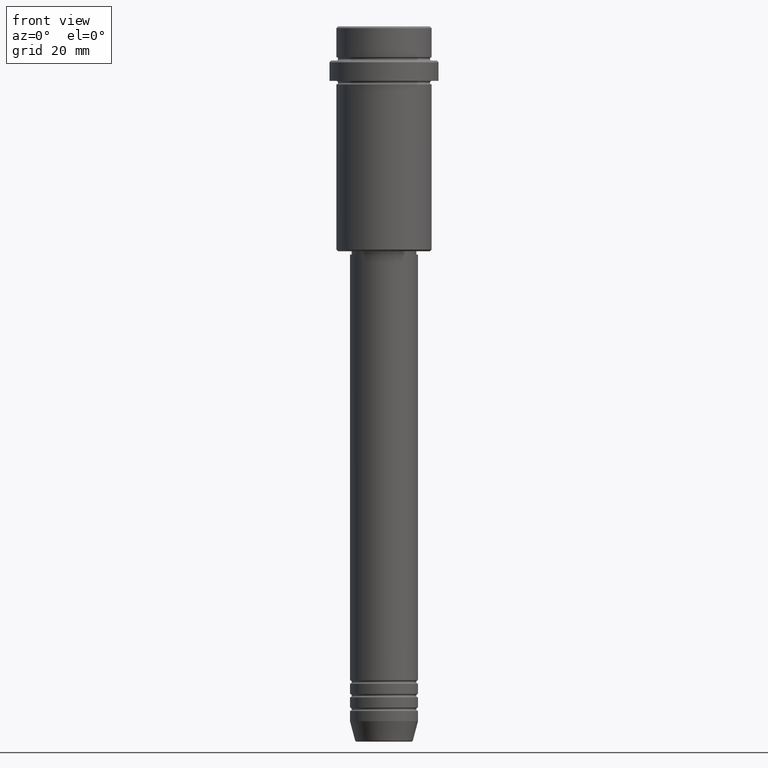
[diagram: clean part render]
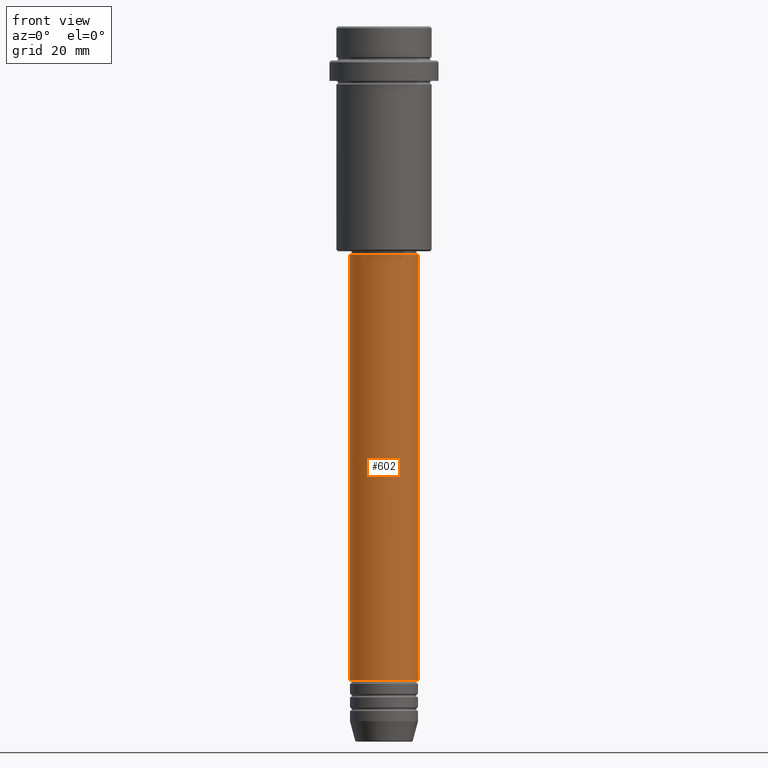
[diagram: same view with one face highlighted and labeled with its STEP entity id]
A machine part, front view. The second image highlights one B-rep face of the part: STEP entity #602.
In plain terms, the highlighted cylindrical surface (edge-blend (fillet) strip) has radius 10 mm, axis along (-0, -0, 1).
Its self-contained STEP definition (entity closure, byte-faithful):
#35 = ORIENTED_EDGE ( 'NONE', *, *, #1171, .T. ) ;
#44 = CARTESIAN_POINT ( 'NONE',  ( 0.000000000000000000, 0.000000000000000000, -191.9999999999999147 ) ) ;
#72 = VECTOR ( 'NONE', #1240, 1000.000000000000000 ) ;
#97 = CARTESIAN_POINT ( 'NONE',  ( -10.00000000000000000, 1.224646799147353256E-15, -191.9999999999999147 ) ) ;
#124 = LINE ( 'NONE', #569, #682 ) ;
#128 = VERTEX_POINT ( 'NONE', #97 ) ;
#149 = ORIENTED_EDGE ( 'NONE', *, *, #955, .F. ) ;
#162 = EDGE_CURVE ( 'NONE', #805, #1055, #124, .T. ) ;
#285 = AXIS2_PLACEMENT_3D ( 'NONE', #44, #1115, #1063 ) ;
#334 = CARTESIAN_POINT ( 'NONE',  ( -10.00000000000000178, 1.224646799147353454E-15, 0.000000000000000000 ) ) ;
#420 = AXIS2_PLACEMENT_3D ( 'NONE', #698, #919, #1358 ) ;
#457 = DIRECTION ( 'NONE',  ( -0.000000000000000000, -0.000000000000000000, 1.000000000000000000 ) ) ;
#545 = CARTESIAN_POINT ( 'NONE',  ( 10.00000000000000178, 0.000000000000000000, -67.00000000000000000 ) ) ;
#554 = LINE ( 'NONE', #334, #72 ) ;
#569 = CARTESIAN_POINT ( 'NONE',  ( 10.00000000000000178, 0.000000000000000000, 0.000000000000000000 ) ) ;
#596 = DIRECTION ( 'NONE',  ( -0.000000000000000000, -0.000000000000000000, 1.000000000000000000 ) ) ;
#602 = ADVANCED_FACE ( 'NONE', ( #1046 ), #1241, .T. ) ;
#653 = EDGE_CURVE ( 'NONE', #784, #1055, #1341, .T. ) ;
#682 = VECTOR ( 'NONE', #457, 1000.000000000000000 ) ;
#698 = CARTESIAN_POINT ( 'NONE',  ( 0.000000000000000000, 0.000000000000000000, 0.000000000000000000 ) ) ;
#709 = CARTESIAN_POINT ( 'NONE',  ( 0.000000000000000000, 0.000000000000000000, -67.00000000000000000 ) ) ;
#784 = VERTEX_POINT ( 'NONE', #905 ) ;
#805 = VERTEX_POINT ( 'NONE', #1007 ) ;
#902 = AXIS2_PLACEMENT_3D ( 'NONE', #709, #596, #930 ) ;
#905 = CARTESIAN_POINT ( 'NONE',  ( -10.00000000000000178, 1.224646799147353454E-15, -67.00000000000000000 ) ) ;
#919 = DIRECTION ( 'NONE',  ( -0.000000000000000000, -0.000000000000000000, 1.000000000000000000 ) ) ;
#921 = ORIENTED_EDGE ( 'NONE', *, *, #162, .T. ) ;
#930 = DIRECTION ( 'NONE',  ( 1.000000000000000000, 0.000000000000000000, 0.000000000000000000 ) ) ;
#955 = EDGE_CURVE ( 'NONE', #128, #784, #554, .T. ) ;
#1007 = CARTESIAN_POINT ( 'NONE',  ( 10.00000000000000000, 0.000000000000000000, -191.9999999999999147 ) ) ;
#1046 = FACE_OUTER_BOUND ( 'NONE', #1099, .T. ) ;
#1055 = VERTEX_POINT ( 'NONE', #545 ) ;
#1063 = DIRECTION ( 'NONE',  ( 1.000000000000000000, 0.000000000000000000, 0.000000000000000000 ) ) ;
#1099 = EDGE_LOOP ( 'NONE', ( #149, #35, #921, #1165 ) ) ;
#1115 = DIRECTION ( 'NONE',  ( -0.000000000000000000, -0.000000000000000000, 1.000000000000000000 ) ) ;
#1165 = ORIENTED_EDGE ( 'NONE', *, *, #653, .F. ) ;
#1171 = EDGE_CURVE ( 'NONE', #128, #805, #1366, .T. ) ;
#1240 = DIRECTION ( 'NONE',  ( -0.000000000000000000, -0.000000000000000000, 1.000000000000000000 ) ) ;
#1241 = CYLINDRICAL_SURFACE ( 'NONE', #420, 10.00000000000000178 ) ;
#1341 = CIRCLE ( 'NONE', #902, 10.00000000000000178 ) ;
#1358 = DIRECTION ( 'NONE',  ( 1.000000000000000000, 0.000000000000000000, 0.000000000000000000 ) ) ;
#1366 = CIRCLE ( 'NONE', #285, 10.00000000000000000 ) ;